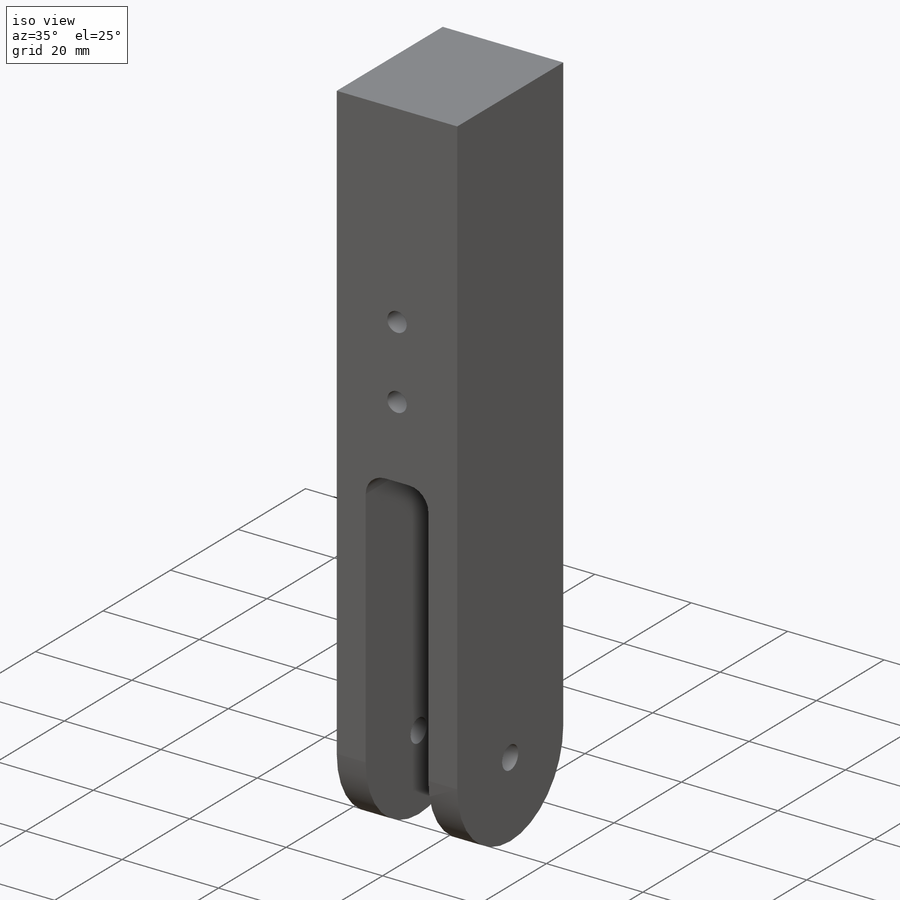
[diagram: iso view]
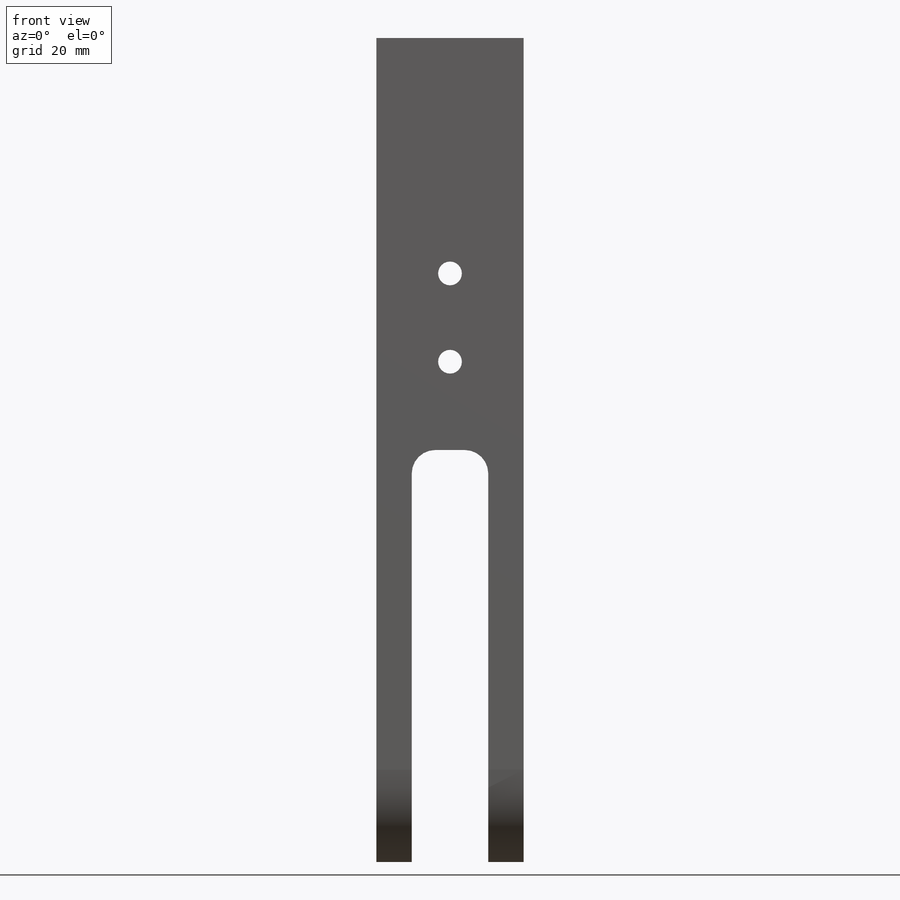
[diagram: front view]
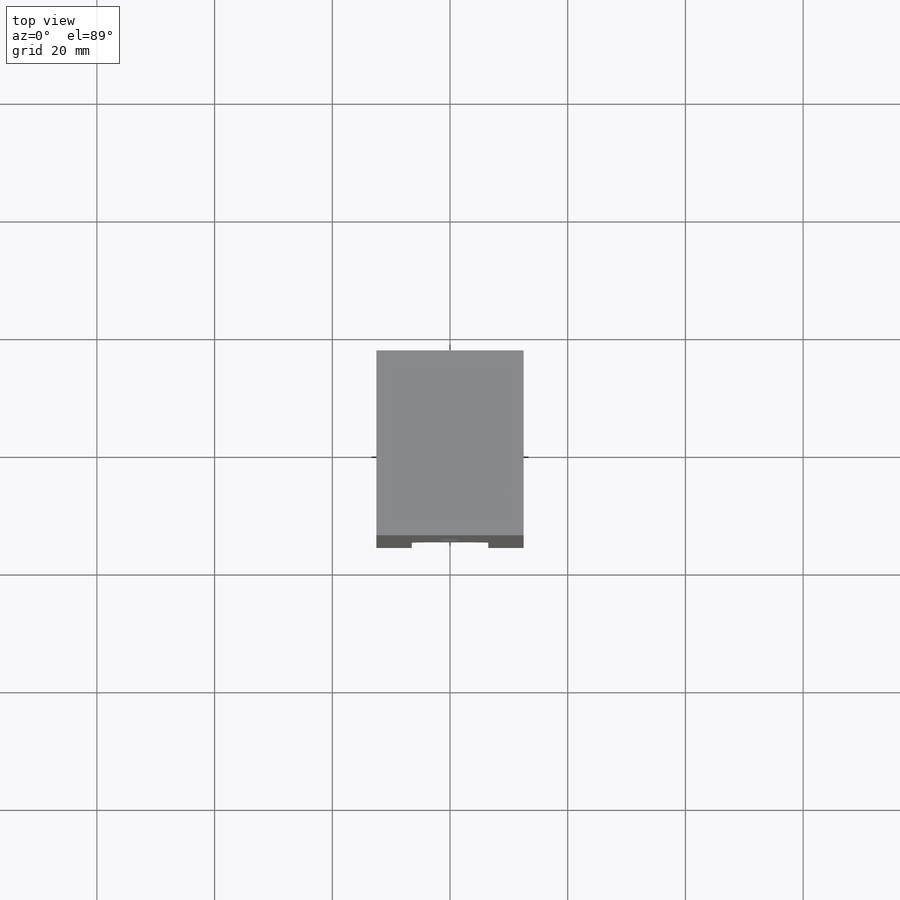
[diagram: top view]
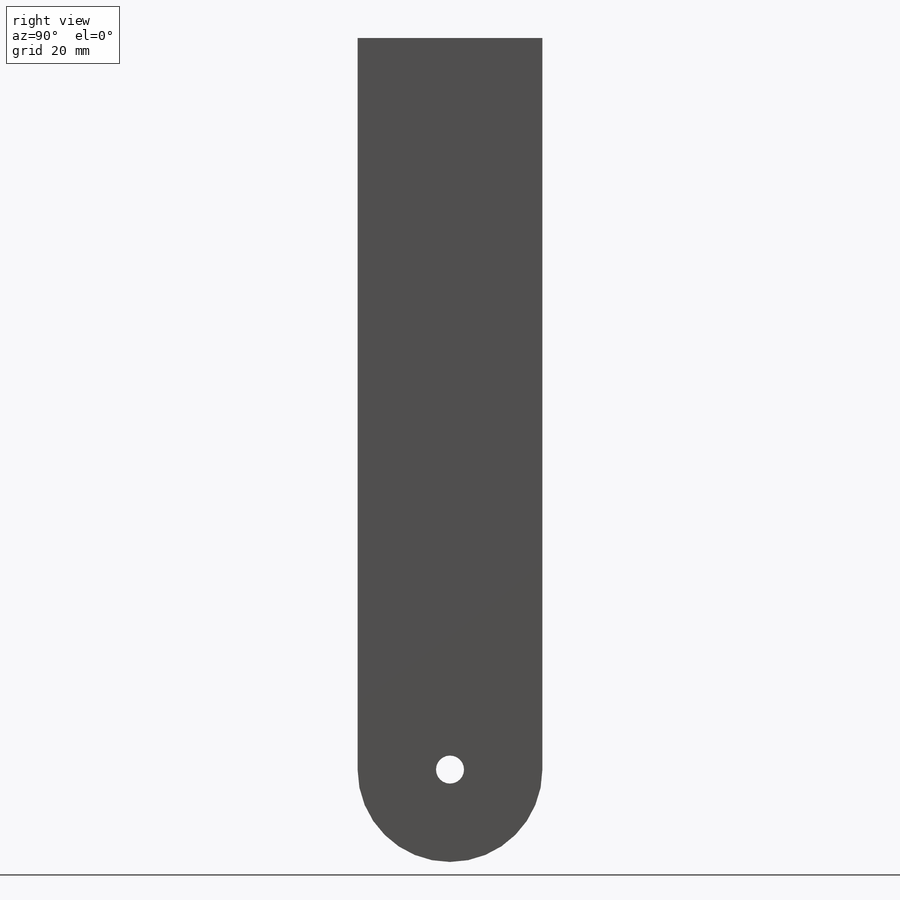
[diagram: right view]
SOLIDWORKS PART (.sldprt)
format: sldprt  version: not decoded by parser v0  size: 260,608 bytes
history: native  units: mm
features: sketch x8, plane x3, extrude x2, cut_extrude x2, fillet x2, thread x2, material x1, hole x1 (+8 scaffold rows collapsed)
feature tree (29):
  scaffold x8  (default folders/planes/origin — collapsed)
  material  "Material <not specified>"
  plane  "前基準面"
  plane  "上基準面"
  plane  "右基準面"
  sketch  "草圖1"  dims[D1=42.0mm D2=25.4mm]
  extrude  "填料-伸長1"  Depth=70mm
  sketch  "草圖2"  dims[D1=17.5mm]
  sketch  "草圖3"  dims[D1=17.5mm]
  sketch  "草圖5"  dims[D1=6.0mm D2=6.0mm]
  extrude  "填料-伸長5"  Depth=70mm
  sketch  "草圖6"  dims[D1=7.9375mm D2=12.7mm D3=31.4mm]
  cut_extrude  "除料-伸長2"  [1 undecoded]
  fillet  "圓角6"  Radius=4mm
  hole  "#10-32 螺紋孔1"  [1 undecoded]
  sketch  "草圖8"  dims[c1.D1=30.0mm c1.D2=15.0mm c2.D1=30.0mm c2.D2=15.0mm]
  thread  "鑽孔螺紋1"  Diameter=4.826mm  [1 undecoded]
  thread  "鑽孔螺紋2"  Diameter=4.826mm  [1 undecoded]
  sketch  "草圖7"  dims[hole-wizard template sketch: 60 standard entries collapsed; hole parameters kept: c18.貫穿螺孔鑽深度=25.4mm]
  fillet  "圓角7"  Radius=12.7mm
  sketch  "草圖9"  dims[D1=15.0mm]
  cut_extrude  "除料-伸長3"  [1 undecoded]
decode coverage: 14 of 17 modeling features carry decoded parameters
note: ~ marks probable driven/reference dimensions
note: 5 parameter values undecoded
summary: no parameter record found for 3 features
note: suppression state not decoded; provenance and decode notes live in map.json
